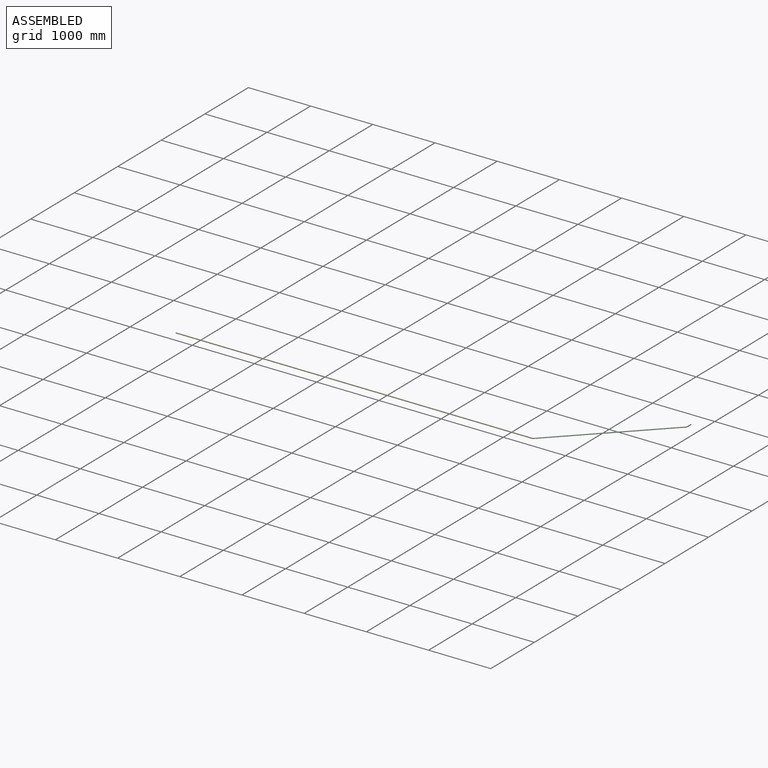
[diagram: assembled view]
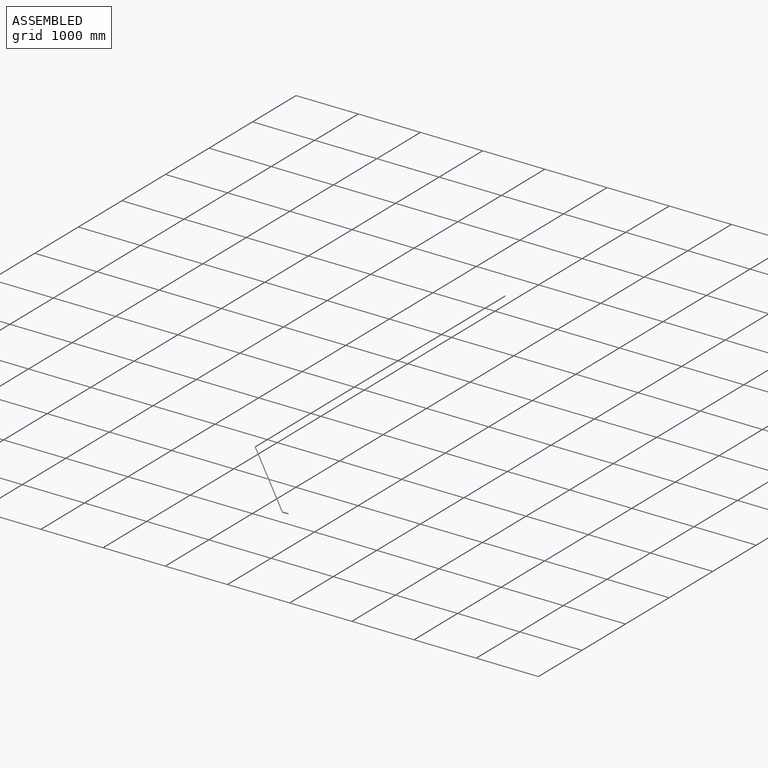
[diagram: assembled view, second angle]
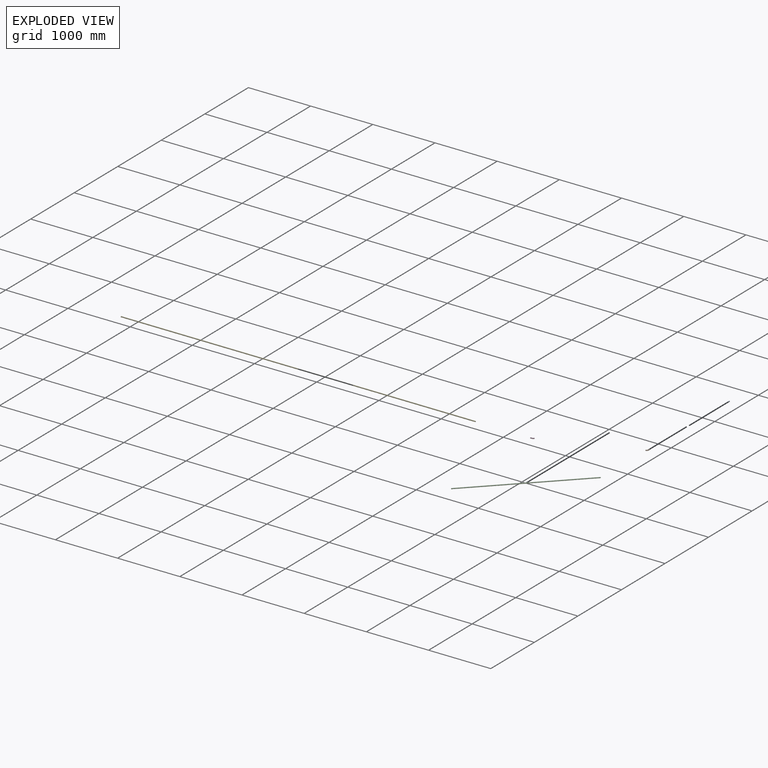
[diagram: exploded view]
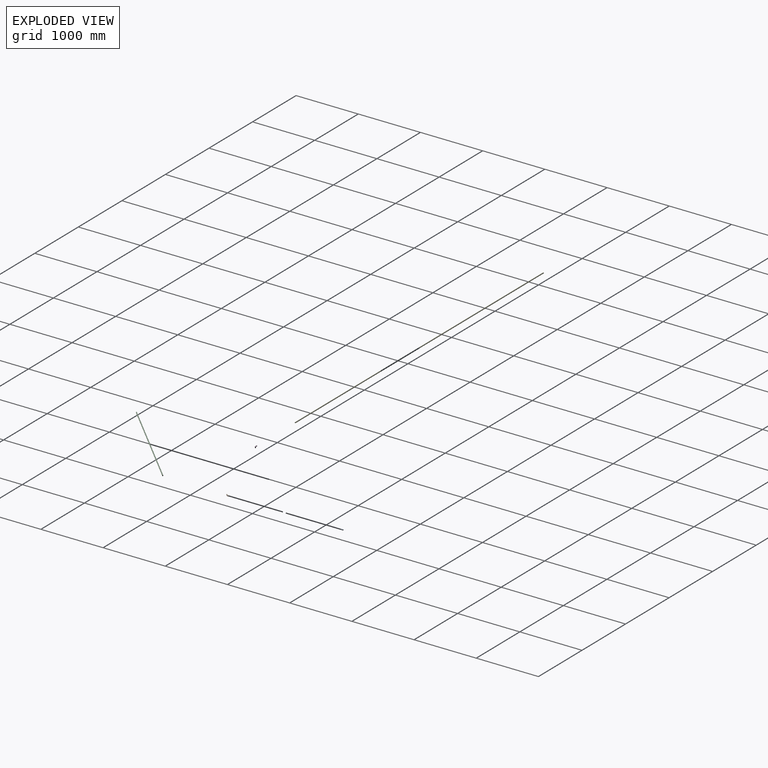
[diagram: exploded view, second angle]
ASSEMBLY  parts=5 mates=4
PART A: 3 faces, bbox 15x70x15 mm
  f0: cylinder r=7.5mm len=70mm, axis (0,-1,0), area 3298.7mm2, adj f1,f2
  f1: plane 15x15mm, normal (0,1,0), area 176.7mm2, adj f0
  f2: plane 15x15mm, normal (0,-1,0), area 176.7mm2, adj f0
PART B: 5 faces, bbox 39.7x55.3x15 mm
  f0: plane 15x15mm, normal (0,-1,0), area 176.7mm2, adj f2
  f1: plane 15x10.61mm, normal (0.71,0.71,0), area 176.7mm2, adj f4
  f2: cylinder r=7.5mm len=18.79mm, axis (0,1,0), area 885.3mm2, adj f0,f3
  f3: torus R=15mm, axis (0,0,-1), area 555.2mm2, adj f2,f4
  f4: cylinder r=7.5mm len=31.21mm, axis (0.71,0.71,0), area 1373.3mm2, adj f1,f3
PART C: 3 faces, bbox 15x2000x15 mm
  f0: cylinder r=7.5mm len=2000mm, axis (0,1,0), area 94247.8mm2, adj f1,f2
  f1: plane 15x15mm, normal (0,-1,0), area 176.7mm2, adj f0
  f2: plane 15x15mm, normal (0,1,0), area 176.7mm2, adj f0
PART D: same geometry as B
PART E: 3 faces, bbox 15x5700x15 mm
  f0: cylinder r=7.5mm len=5700mm, axis (0,-1,0), area 268606.2mm2, adj f1,f2
  f1: plane 15x15mm, normal (0,1,0), area 176.7mm2, adj f0
  f2: plane 15x15mm, normal (0,-1,0), area 176.7mm2, adj f0
PLACE A t=(15027.51,-1534.02,-1611.59)mm
PLACE B rot(axis=(0,0,-1),180deg) t=(14941.08,-1534.02,-1575)mm
PLACE C rot(axis=(0,0,-1),45deg) t=(14853.45,-1521.4,-1611.59)mm
PLACE D rot(axis=(0,0,1),135deg) t=(13501.87,-2998.24,-1575)mm
PLACE E rot(axis=(0,0,-1),90deg) t=(7748.83,-2977.35,-1611.59)mm
MATE fastened D.f2 <-> C.f0  axis (0.71,0.71,0) through (13501.87,-2998.24,-1575)mm
MATE fastened E.f0 <-> D.f4  axis (1,0,0) through (13448.83,-3015.91,-1575)mm
MATE fastened C.f0 <-> B.f4  axis (0.71,0.71,0) through (14916.08,-1584.02,-1575)mm
MATE fastened B.f2 <-> A.f0  axis (0,1,0) through (14941.08,-1534.02,-1575)mm
